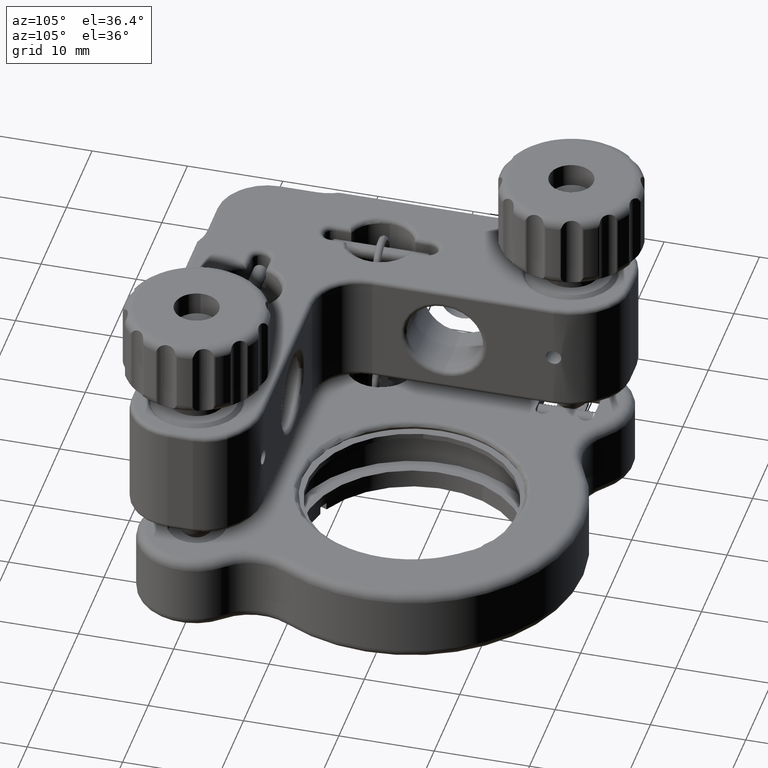
[diagram: clean part render]
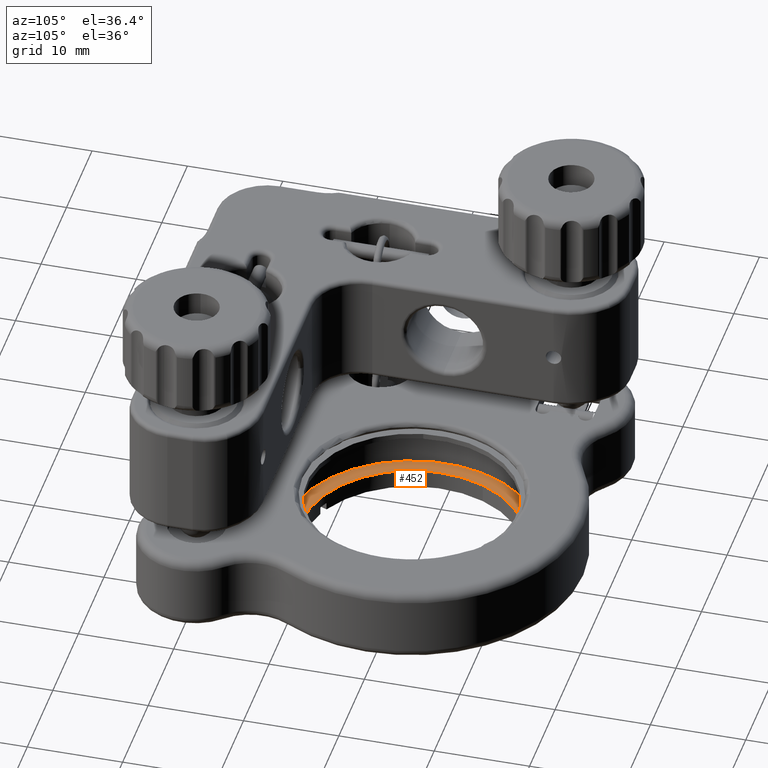
[diagram: same view with one face highlighted and labeled with its STEP entity id]
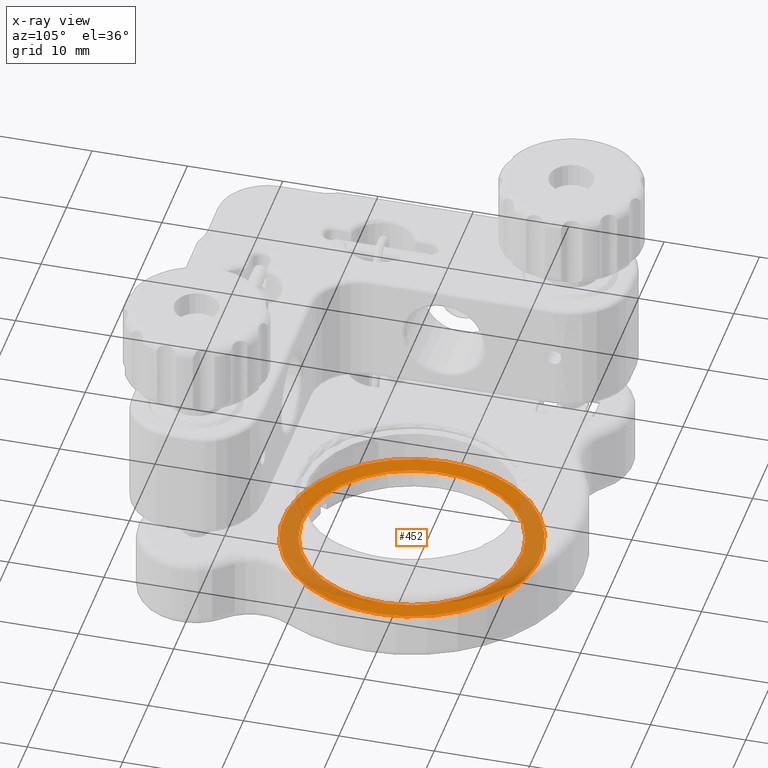
[diagram: x-ray of the same camera — body ghosted, the highlighted face saturated]
A machine part, auxiliary view. The second image highlights one B-rep face of the part: STEP entity #452.
The next image is the same camera in x-ray: the body ghosted, the highlighted face saturated — about 45% of this face is hidden behind the body in this view.
In plain terms, the highlighted planar face has unit normal (0, 0, -1).
Its self-contained STEP definition (entity closure, byte-faithful):
#452 = ADVANCED_FACE ( 'NONE', ( #2234, #5814 ), #16092, .F. ) ;
#1229 = AXIS2_PLACEMENT_3D ( 'NONE', #1459, #8085, #12670 ) ;
#1272 = EDGE_CURVE ( 'NONE', #17221, #4498, #4269, .T. ) ;
#1326 = EDGE_LOOP ( 'NONE', ( #14374, #20798 ) ) ;
#1459 = CARTESIAN_POINT ( 'NONE',  ( 19.49999999999998200, 19.50000000000003900, -15.99999999999998900 ) ) ;
#1702 = DIRECTION ( 'NONE',  ( 3.911801438327710400E-016, 1.942890293094031300E-016, -1.000000000000000000 ) ) ;
#2234 = FACE_OUTER_BOUND ( 'NONE', #15052, .T. ) ;
#2396 = DIRECTION ( 'NONE',  ( 3.911801438327710400E-016, 1.942890293094031300E-016, -1.000000000000000000 ) ) ;
#2466 = EDGE_CURVE ( 'NONE', #4498, #17221, #7075, .T. ) ;
#2690 = EDGE_CURVE ( 'NONE', #20378, #13758, #6040, .T. ) ;
#2698 = CARTESIAN_POINT ( 'NONE',  ( 7.172090639315698000, 24.90939525684278900, -15.99999999999999300 ) ) ;
#3383 = DIRECTION ( 'NONE',  ( -0.9157221437834193200, 0.4018120896447722200, -2.577119370067673300E-016 ) ) ;
#3762 = EDGE_CURVE ( 'NONE', #13758, #20378, #10046, .T. ) ;
#4245 = CARTESIAN_POINT ( 'NONE',  ( 31.82790936068427000, 14.09060474315728900, -15.99999999999998600 ) ) ;
#4269 = CIRCLE ( 'NONE', #18533, 11.50000000000002700 ) ;
#4498 = VERTEX_POINT ( 'NONE', #11640 ) ;
#5255 = DIRECTION ( 'NONE',  ( 3.911801438327688700E-016, 1.942890293094041000E-016, -1.000000000000000000 ) ) ;
#5814 = FACE_BOUND ( 'NONE', #1326, .T. ) ;
#6000 = DIRECTION ( 'NONE',  ( -0.9157221437834193200, 0.4018120896447724400, -3.016910393003136000E-016 ) ) ;
#6040 = CIRCLE ( 'NONE', #7438, 13.46250000000003400 ) ;
#6065 = CARTESIAN_POINT ( 'NONE',  ( 19.49999999999998200, 19.50000000000003900, -15.99999999999998900 ) ) ;
#7075 = CIRCLE ( 'NONE', #17888, 11.50000000000002700 ) ;
#7438 = AXIS2_PLACEMENT_3D ( 'NONE', #11436, #1702, #3383 ) ;
#8085 = DIRECTION ( 'NONE',  ( 3.911801438327710400E-016, 1.942890293094031300E-016, -1.000000000000000000 ) ) ;
#9384 = DIRECTION ( 'NONE',  ( 3.911801438327710400E-016, 1.942890293094031300E-016, -1.000000000000000000 ) ) ;
#10046 = CIRCLE ( 'NONE', #1229, 13.46250000000003400 ) ;
#11436 = CARTESIAN_POINT ( 'NONE',  ( 19.49999999999998200, 19.50000000000003900, -15.99999999999998900 ) ) ;
#11640 = CARTESIAN_POINT ( 'NONE',  ( 8.969195346490661100, 24.12083903091492600, -15.99999999999999300 ) ) ;
#12670 = DIRECTION ( 'NONE',  ( -0.9157221437834193200, 0.4018120896447722200, -2.577119370067673300E-016 ) ) ;
#13102 = DIRECTION ( 'NONE',  ( -0.9157221437834193200, 0.4018120896447724400, -2.801446390541832900E-016 ) ) ;
#13758 = VERTEX_POINT ( 'NONE', #2698 ) ;
#13911 = ORIENTED_EDGE ( 'NONE', *, *, #2690, .F. ) ;
#14374 = ORIENTED_EDGE ( 'NONE', *, *, #1272, .T. ) ;
#14925 = CARTESIAN_POINT ( 'NONE',  ( 19.49999999999998200, 19.50000000000003900, -15.99999999999998900 ) ) ;
#14943 = AXIS2_PLACEMENT_3D ( 'NONE', #14925, #5255, #13102 ) ;
#15050 = CARTESIAN_POINT ( 'NONE',  ( 30.03080465350930300, 14.87916096908515400, -15.99999999999998600 ) ) ;
#15052 = EDGE_LOOP ( 'NONE', ( #13911, #16376 ) ) ;
#15076 = DIRECTION ( 'NONE',  ( -0.9157221437834193200, 0.4018120896447724400, -3.016910393003136000E-016 ) ) ;
#16092 = PLANE ( 'NONE',  #14943 ) ;
#16376 = ORIENTED_EDGE ( 'NONE', *, *, #3762, .F. ) ;
#17221 = VERTEX_POINT ( 'NONE', #15050 ) ;
#17888 = AXIS2_PLACEMENT_3D ( 'NONE', #6065, #9384, #6000 ) ;
#18533 = AXIS2_PLACEMENT_3D ( 'NONE', #18590, #2396, #15076 ) ;
#18590 = CARTESIAN_POINT ( 'NONE',  ( 19.49999999999998200, 19.50000000000003900, -15.99999999999998900 ) ) ;
#20378 = VERTEX_POINT ( 'NONE', #4245 ) ;
#20798 = ORIENTED_EDGE ( 'NONE', *, *, #2466, .T. ) ;